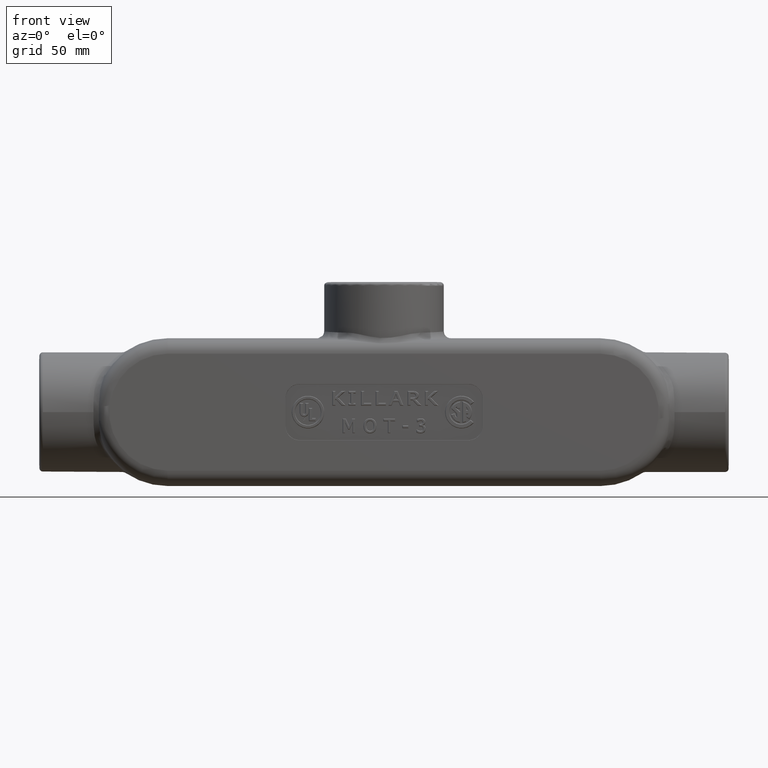
[diagram: clean part render]
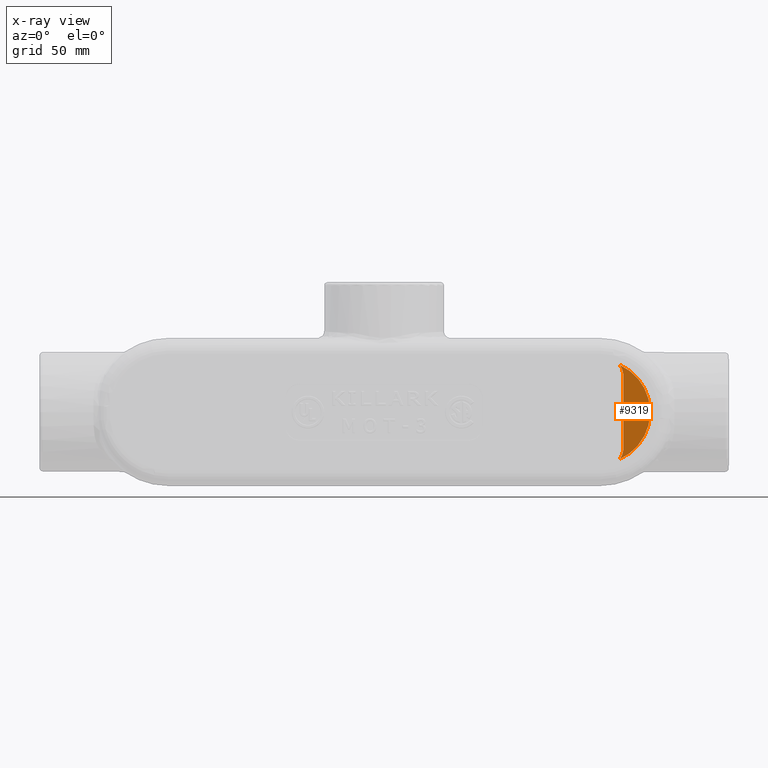
[diagram: x-ray — body ghosted, one internal face saturated and labeled with its STEP entity id]
A machine part, front view, then the same camera in x-ray: the body is ghosted and one INTERNAL B-rep face — a face not visible from any outside direction — is saturated and labeled: STEP entity #9319.
In plain terms, the highlighted planar face has unit normal (0, 1, 0).
Its self-contained STEP definition (entity closure, byte-faithful):
#832=PLANE('',#9911);
#1264=FACE_OUTER_BOUND('',#1803,.T.);
#1803=EDGE_LOOP('',(#7470,#7471,#7472,#7473,#7474,#7475));
#2344=LINE('',#21496,#3078);
#2353=LINE('',#21765,#3087);
#3078=VECTOR('',#10987,0.393700787401575);
#3087=VECTOR('',#11060,0.393700787401575);
#3667=CIRCLE('',#9883,0.916159665132998);
#3668=CIRCLE('',#9885,0.916159665132998);
#3682=CIRCLE('',#9912,0.379909860294222);
#3683=CIRCLE('',#9913,0.379909860294223);
#4197=VERTEX_POINT('',#21482);
#4198=VERTEX_POINT('',#21495);
#4199=VERTEX_POINT('',#21510);
#4200=VERTEX_POINT('',#21514);
#4219=VERTEX_POINT('',#21762);
#4220=VERTEX_POINT('',#21764);
#5355=EDGE_CURVE('',#4197,#4198,#2344,.T.);
#5358=EDGE_CURVE('',#4199,#4197,#3667,.T.);
#5359=EDGE_CURVE('',#4198,#4200,#3668,.T.);
#5390=EDGE_CURVE('',#4219,#4199,#3682,.F.);
#5391=EDGE_CURVE('',#4219,#4220,#2353,.T.);
#5392=EDGE_CURVE('',#4200,#4220,#3683,.F.);
#7470=ORIENTED_EDGE('',*,*,#5358,.F.);
#7471=ORIENTED_EDGE('',*,*,#5390,.F.);
#7472=ORIENTED_EDGE('',*,*,#5391,.T.);
#7473=ORIENTED_EDGE('',*,*,#5392,.F.);
#7474=ORIENTED_EDGE('',*,*,#5359,.F.);
#7475=ORIENTED_EDGE('',*,*,#5355,.F.);
#9319=ADVANCED_FACE('',(#1264),#832,.F.);
#9883=AXIS2_PLACEMENT_3D('',#21512,#10992,#10993);
#9885=AXIS2_PLACEMENT_3D('',#21515,#10996,#10997);
#9911=AXIS2_PLACEMENT_3D('',#21761,#11056,#11057);
#9912=AXIS2_PLACEMENT_3D('',#21763,#11058,#11059);
#9913=AXIS2_PLACEMENT_3D('',#21766,#11061,#11062);
#10987=DIRECTION('',(0.,0.,-1.));
#10992=DIRECTION('center_axis',(0.,1.,0.));
#10993=DIRECTION('ref_axis',(0.829736078774104,0.,0.558155927658727));
#10996=DIRECTION('center_axis',(0.,1.,0.));
#10997=DIRECTION('ref_axis',(0.829736078774104,0.,-0.558155927658727));
#11056=DIRECTION('center_axis',(0.,1.,0.));
#11057=DIRECTION('ref_axis',(0.,0.,1.));
#11058=DIRECTION('center_axis',(0.,1.,0.));
#11059=DIRECTION('ref_axis',(0.707106781186548,0.,0.707106781186547));
#11060=DIRECTION('',(-3.49676543189026E-16,0.,-1.));
#11061=DIRECTION('center_axis',(0.,1.,0.));
#11062=DIRECTION('ref_axis',(0.707106781186548,0.,-0.707106781186547));
#21482=CARTESIAN_POINT('',(4.728159665133,1.,0.030263999490017));
#21495=CARTESIAN_POINT('',(4.728159665133,1.,-0.0302639994900125));
#21496=CARTESIAN_POINT('',(4.728159665133,1.,0.0167686463377237));
#21510=CARTESIAN_POINT('',(4.19249186955897,1.,0.833639437098367));
#21512=CARTESIAN_POINT('Origin',(3.8125,1.,-1.04902962956708E-15));
#21514=CARTESIAN_POINT('',(4.19249186955897,1.,-0.83363943709837));
#21515=CARTESIAN_POINT('Origin',(3.8125,1.,-1.04902962956708E-15));
#21761=CARTESIAN_POINT('Origin',(-0.000249999999999977,1.,-4.37095678986282E-16));
#21762=CARTESIAN_POINT('',(4.25490986029422,1.,0.624999999999999));
#21763=CARTESIAN_POINT('Origin',(3.875,1.,0.625));
#21764=CARTESIAN_POINT('',(4.25490986029422,1.,-0.625));
#21765=CARTESIAN_POINT('',(4.25490986029422,1.,0.499999999999999));
#21766=CARTESIAN_POINT('Origin',(3.875,1.,-0.625));